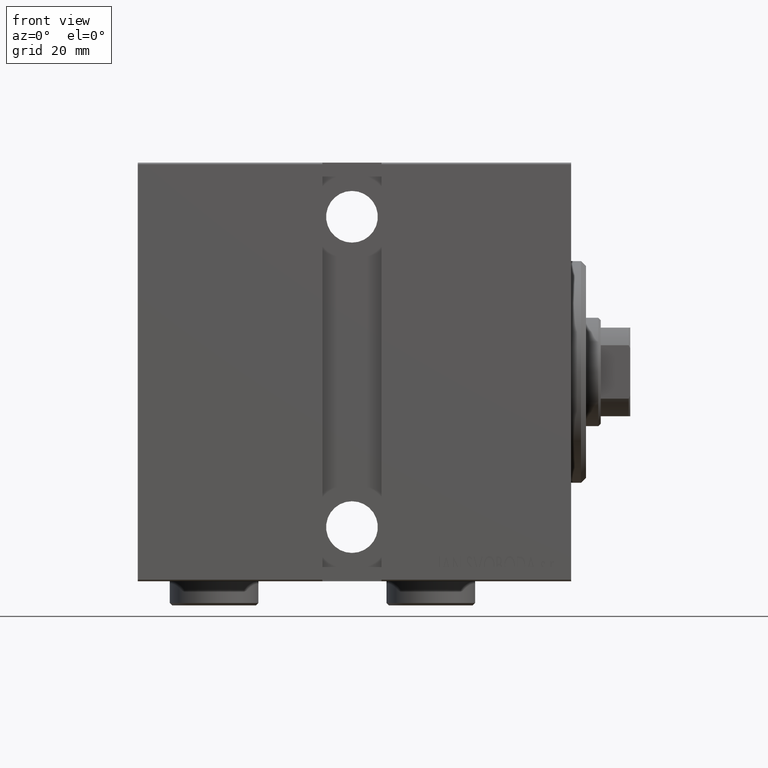
[diagram: clean part render]
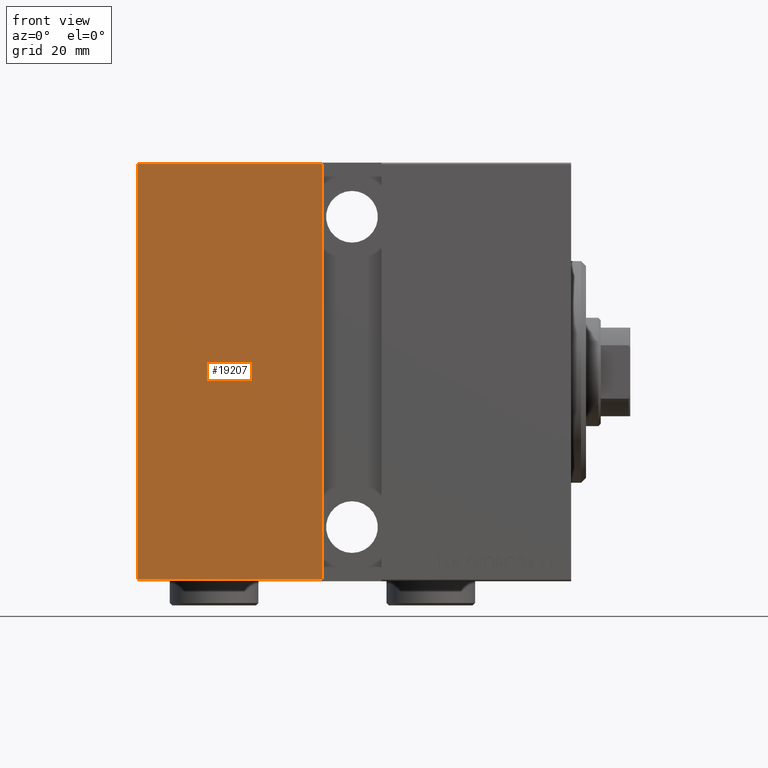
[diagram: same view with one face highlighted and labeled with its STEP entity id]
A machine part, front view. The second image highlights one B-rep face of the part: STEP entity #19207.
In plain terms, the highlighted planar face has unit normal (-0, 1, -0).
Its self-contained STEP definition (entity closure, byte-faithful):
#67 = ORIENTED_EDGE ( 'NONE', *, *, #42360, .T. ) ;
#934 = EDGE_CURVE ( 'NONE', #16870, #22879, #4296, .T. ) ;
#1231 = DIRECTION ( 'NONE',  ( 0.000000000000000000, -1.000000000000000000, -1.632680918566406300E-16 ) ) ;
#2283 = DIRECTION ( 'NONE',  ( 0.000000000000000000, -1.632680918566406300E-16, 1.000000000000000000 ) ) ;
#3888 = VECTOR ( 'NONE', #2283, 1000.000000000000000 ) ;
#4296 = LINE ( 'NONE', #17894, #14137 ) ;
#4355 = PLANE ( 'NONE',  #22360 ) ;
#4736 = EDGE_LOOP ( 'NONE', ( #29018, #67, #16661, #23891 ) ) ;
#6535 = CARTESIAN_POINT ( 'NONE',  ( 88.00000000000000000, 31.50000000000000000, 42.20000000000001705 ) ) ;
#6784 = CARTESIAN_POINT ( 'NONE',  ( 88.00000000000000000, 31.50000000000001421, -42.20000000000000284 ) ) ;
#8118 = CARTESIAN_POINT ( 'NONE',  ( 50.49999999999999289, 31.50000000000000711, -42.20000000000000284 ) ) ;
#9310 = CARTESIAN_POINT ( 'NONE',  ( 88.00000000000000000, 31.50000000000000000, 42.20000000000001705 ) ) ;
#12421 = VECTOR ( 'NONE', #20380, 1000.000000000000000 ) ;
#12859 = LINE ( 'NONE', #9310, #19579 ) ;
#12969 = CARTESIAN_POINT ( 'NONE',  ( 88.00000000000000000, 31.50000000000001421, -42.50000000000000711 ) ) ;
#14137 = VECTOR ( 'NONE', #18330, 1000.000000000000000 ) ;
#16661 = ORIENTED_EDGE ( 'NONE', *, *, #934, .F. ) ;
#16870 = VERTEX_POINT ( 'NONE', #29518 ) ;
#17894 = CARTESIAN_POINT ( 'NONE',  ( 50.49999999999999289, 31.50000000000000711, -42.50000000000000711 ) ) ;
#18330 = DIRECTION ( 'NONE',  ( -1.632680918566407286E-16, -0.000000000000000000, -1.000000000000000000 ) ) ;
#19207 = ADVANCED_FACE ( 'NONE', ( #24185 ), #4355, .F. ) ;
#19579 = VECTOR ( 'NONE', #33803, 1000.000000000000000 ) ;
#20380 = DIRECTION ( 'NONE',  ( -1.000000000000000000, 0.000000000000000000, 0.000000000000000000 ) ) ;
#22360 = AXIS2_PLACEMENT_3D ( 'NONE', #35319, #1231, #37768 ) ;
#22879 = VERTEX_POINT ( 'NONE', #8118 ) ;
#23002 = LINE ( 'NONE', #12969, #3888 ) ;
#23891 = ORIENTED_EDGE ( 'NONE', *, *, #43436, .T. ) ;
#23908 = EDGE_CURVE ( 'NONE', #32362, #25641, #23002, .T. ) ;
#24185 = FACE_OUTER_BOUND ( 'NONE', #4736, .T. ) ;
#25641 = VERTEX_POINT ( 'NONE', #6535 ) ;
#29018 = ORIENTED_EDGE ( 'NONE', *, *, #23908, .F. ) ;
#29518 = CARTESIAN_POINT ( 'NONE',  ( 50.50000000000000711, 31.50000000000000711, 42.20000000000001705 ) ) ;
#32362 = VERTEX_POINT ( 'NONE', #39660 ) ;
#33803 = DIRECTION ( 'NONE',  ( 1.000000000000000000, 0.000000000000000000, 0.000000000000000000 ) ) ;
#35319 = CARTESIAN_POINT ( 'NONE',  ( 88.00000000000000000, 31.50000000000001421, -42.50000000000000711 ) ) ;
#37768 = DIRECTION ( 'NONE',  ( 0.000000000000000000, 1.632680918566406300E-16, -1.000000000000000000 ) ) ;
#39660 = CARTESIAN_POINT ( 'NONE',  ( 88.00000000000000000, 31.50000000000001421, -42.20000000000000284 ) ) ;
#41528 = LINE ( 'NONE', #6784, #12421 ) ;
#42360 = EDGE_CURVE ( 'NONE', #32362, #22879, #41528, .T. ) ;
#43436 = EDGE_CURVE ( 'NONE', #16870, #25641, #12859, .T. ) ;